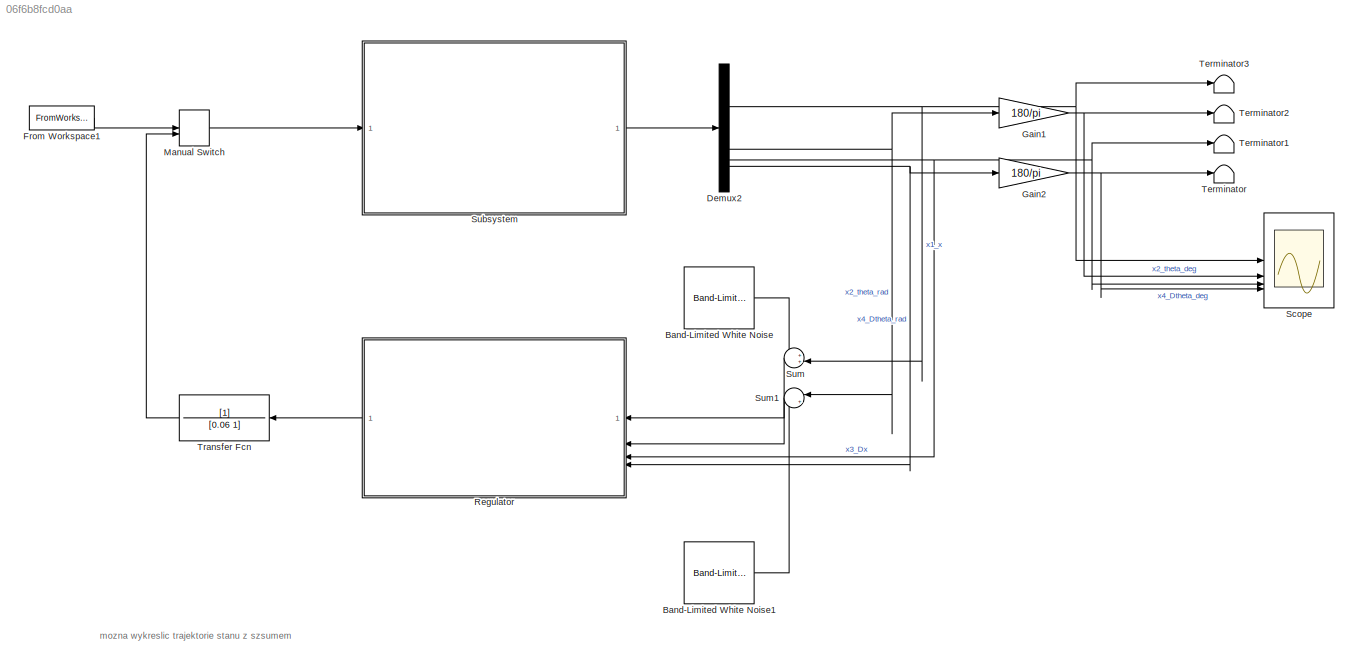
MODEL slx_06f6b8fcd0aa
KIND model
CONFIG AbsTol = auto
CONFIG EnableMultiTasking = off
CONFIG FixedStep = dt
CONFIG MaxStep = 0.001
CONFIG MinStep = auto
CONFIG RelTol = 1e-3
CONFIG SampleTimeConstraint = Unconstrained
CONFIG SolverName = ode4
CONFIG StartTime = 0.0
CONFIG StopTime = end_time
BLOCK [Reference] Band-Limited White Noise  REF=simulink/Sources/Band-Limited
White Noise
  SourceBlock = simulink/Sources/Band-Limited\nWhite Noise
  SourceType = Band-Limited White Noise.
BLOCK [Reference] Band-Limited White Noise1  REF=simulink/Sources/Band-Limited
White Noise
  SourceBlock = simulink/Sources/Band-Limited\nWhite Noise
  SourceType = Band-Limited White Noise.
BLOCK [Demux] Demux2
BLOCK [FromWorkspace] From Workspace1
  SampleTime = dt
  VariableName = U_sim
BLOCK [Gain] Gain1
  Gain = 180/pi
BLOCK [Gain] Gain2
  Gain = 180/pi
BLOCK [ManualSwitch] Manual Switch
  CurrentSetting = 0
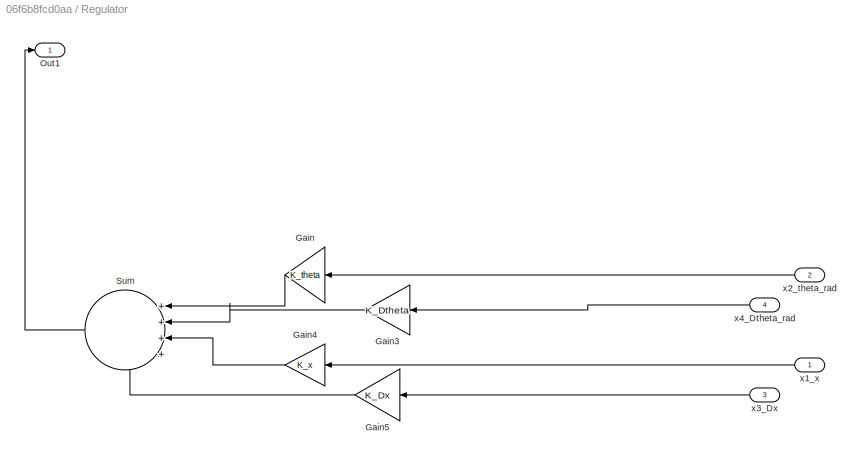
BLOCK [SubSystem] Regulator
  NameLocation = top
BLOCK [Gain] Regulator/Gain
  Gain = K_theta
  NameLocation = top
BLOCK [Gain] Regulator/Gain3
  Gain = K_Dtheta
  NameLocation = top
BLOCK [Gain] Regulator/Gain4
  Gain = K_x
  NameLocation = top
BLOCK [Gain] Regulator/Gain5
  Gain = K_Dx
  NameLocation = top
BLOCK [Outport] Regulator/Out1
BLOCK [Sum] Regulator/Sum
  Inputs = ++++
  NameLocation = top
BLOCK [Inport] Regulator/x1_x
  NameLocation = top
BLOCK [Inport] Regulator/x2_theta_rad
  NameLocation = top
  Port = 2
BLOCK [Inport] Regulator/x3_Dx
  NameLocation = top
  Port = 3
BLOCK [Inport] Regulator/x4_Dtheta_rad
  NameLocation = top
  Port = 4
BLOCK [Scope] Scope
  Floating = off
  NumInputPorts = 4
  ScopeSpecificationString = Simulink.scopes.TimeScopeBlockCfg('CurrentConfiguration', extmgr.ConfigurationSet(extmgr.Configuration('Core','General UI',true,'FigureColor',[0 0 0]),extmgr.Configuration('Core','Source UI',true),extmgr.Configuration('Sources','WiredSimulink',true),extmgr.Configuration('Visuals','Time Domain',true,'SerializedDisplays',{struct('MinYLimReal','-0.10366','MaxYLimReal','0.33396','YLabelReal','','MinYL...<+4188ch>
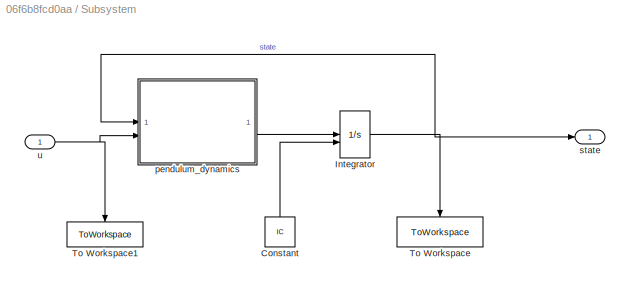
BLOCK [SubSystem] Subsystem
  ShowPortLabels = none
BLOCK [Constant] Subsystem/Constant
  NameLocation = right
  Value = IC
BLOCK [Integrator] Subsystem/Integrator
  InitialConditionSource = external
BLOCK [ToWorkspace] Subsystem/To Workspace
  FixptAsFi = on
  MaxDataPoints = inf
  NameLocation = left
  SampleTime = -1
  Save2DSignal = 2-D array (concatenate along first dimension)
  SaveFormat = Structure With Time
  VariableName = state_out
BLOCK [ToWorkspace] Subsystem/To Workspace1
  FixptAsFi = on
  MaxDataPoints = inf
  NameLocation = left
  SampleTime = -1
  SaveFormat = Timeseries
  VariableName = u
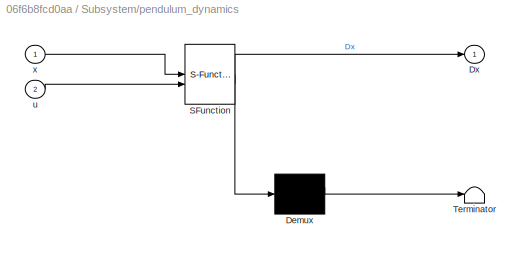
BLOCK [SubSystem] Subsystem/pendulum_dynamics
  ErrorFcn = Stateflow.Translate.translate
  PermitHierarchicalResolution = ExplicitOnly
  SFBlockType = MATLAB Function
  TreatAsAtomicUnit = on
BLOCK [Demux] Subsystem/pendulum_dynamics/ Demux 
  Outputs = 1
BLOCK [S-Function] Subsystem/pendulum_dynamics/ SFunction 
  EnableBusSupport = on
  FunctionName = sf_sfun
  Parameters = params
  PortCounts = [2 2]
  SFcnIsStateOwnerBlock = off
  SFunctionDeploymentMode = off
  Tag = Stateflow S-Function 3
BLOCK [Terminator] Subsystem/pendulum_dynamics/ Terminator 
BLOCK [Outport] Subsystem/pendulum_dynamics/Dx
BLOCK [Inport] Subsystem/pendulum_dynamics/u
  Port = 2
BLOCK [Inport] Subsystem/pendulum_dynamics/x
BLOCK [Outport] Subsystem/state
BLOCK [Inport] Subsystem/u
BLOCK [Sum] Sum
  Inputs = ++|
  NameLocation = top
BLOCK [Sum] Sum1
  Inputs = |++
  NameLocation = top
BLOCK [Terminator] Terminator
BLOCK [Terminator] Terminator1
BLOCK [Terminator] Terminator2
BLOCK [Terminator] Terminator3
BLOCK [TransferFcn] Transfer Fcn
  Denominator = [0.06 1]
  NameLocation = top
ANNOTATION (root): mozna wykreslic trajektorie stanu z szsumem
LINE Band-Limited White Noise1:1 -> Sum1:2
LINE Band-Limited White Noise:1 -> Sum:1
NET Demux2:1 -> Scope:1, Sum:2, Terminator3:1
NET Demux2:2 -> Gain1:1, Sum1:1
NET Demux2:3 -> Regulator:3, Scope:3, Terminator1:1
NET Demux2:4 -> Gain2:1, Regulator:4
LINE From Workspace1:1 -> Manual Switch:1
NET Gain1:1 -> Scope:2, Terminator2:1
NET Gain2:1 -> Scope:4, Terminator:1
LINE Manual Switch:1 -> Subsystem:1
LINE Regulator/Gain3:1 -> Regulator/Sum:2
LINE Regulator/Gain4:1 -> Regulator/Sum:3
LINE Regulator/Gain5:1 -> Regulator/Sum:4
LINE Regulator/Gain:1 -> Regulator/Sum:1
LINE Regulator/Sum:1 -> Regulator/Out1:1
LINE Regulator/x1_x:1 -> Regulator/Gain4:1
LINE Regulator/x2_theta_rad:1 -> Regulator/Gain:1
LINE Regulator/x3_Dx:1 -> Regulator/Gain5:1
LINE Regulator/x4_Dtheta_rad:1 -> Regulator/Gain3:1
LINE Regulator:1 -> Transfer Fcn:1
LINE Subsystem/Constant:1 -> Subsystem/Integrator:2
NET Subsystem/Integrator:1 -> Subsystem/To Workspace:1, Subsystem/pendulum_dynamics:1, Subsystem/state:1
LINE Subsystem/pendulum_dynamics:1 -> Subsystem/Integrator:1
NET Subsystem/u:1 -> Subsystem/To Workspace1:1, Subsystem/pendulum_dynamics:2
LINE Subsystem:1 -> Demux2:1
LINE Sum1:1 -> Regulator:2
LINE Sum:1 -> Regulator:1
LINE Transfer Fcn:1 -> Manual Switch:2
note: NET lines group one-source signal fan-out (src -> all destinations, sorted); 1:1 wires keep LINE
CHART Subsystem/pendulum_dynamics states=1 transitions=1
  STATE_LABEL 'eML_blk_kernel()'
  STATE_LABEL 'SCRIPT:\nfunction Dx = dynamika_wahadla(x, u, params)\n% x : state\n% u : input signal\n%\n% params scope: "parameters"\n\n% State, function input: x = [x Dx theta Dtheta]\'\nx1 = x(1);\nx2 = x(2);\nx3 = x(3);\nx4 = x(4);\n\n% % Sat na x1\n% if x1 >= 0.4\n%     x1 = 0.4;\n% elseif x1 <= -0.4\n%     x1 = -0.4;\n% end\n\n% Params\n% [M, mc, mp, Lp, Lc, g, b, gamma, D, alpha, mr, Mt, L, Jcm, Jt] = params.values;\nM       =...<+934ch>'
CHART  states=0 transitions=0
